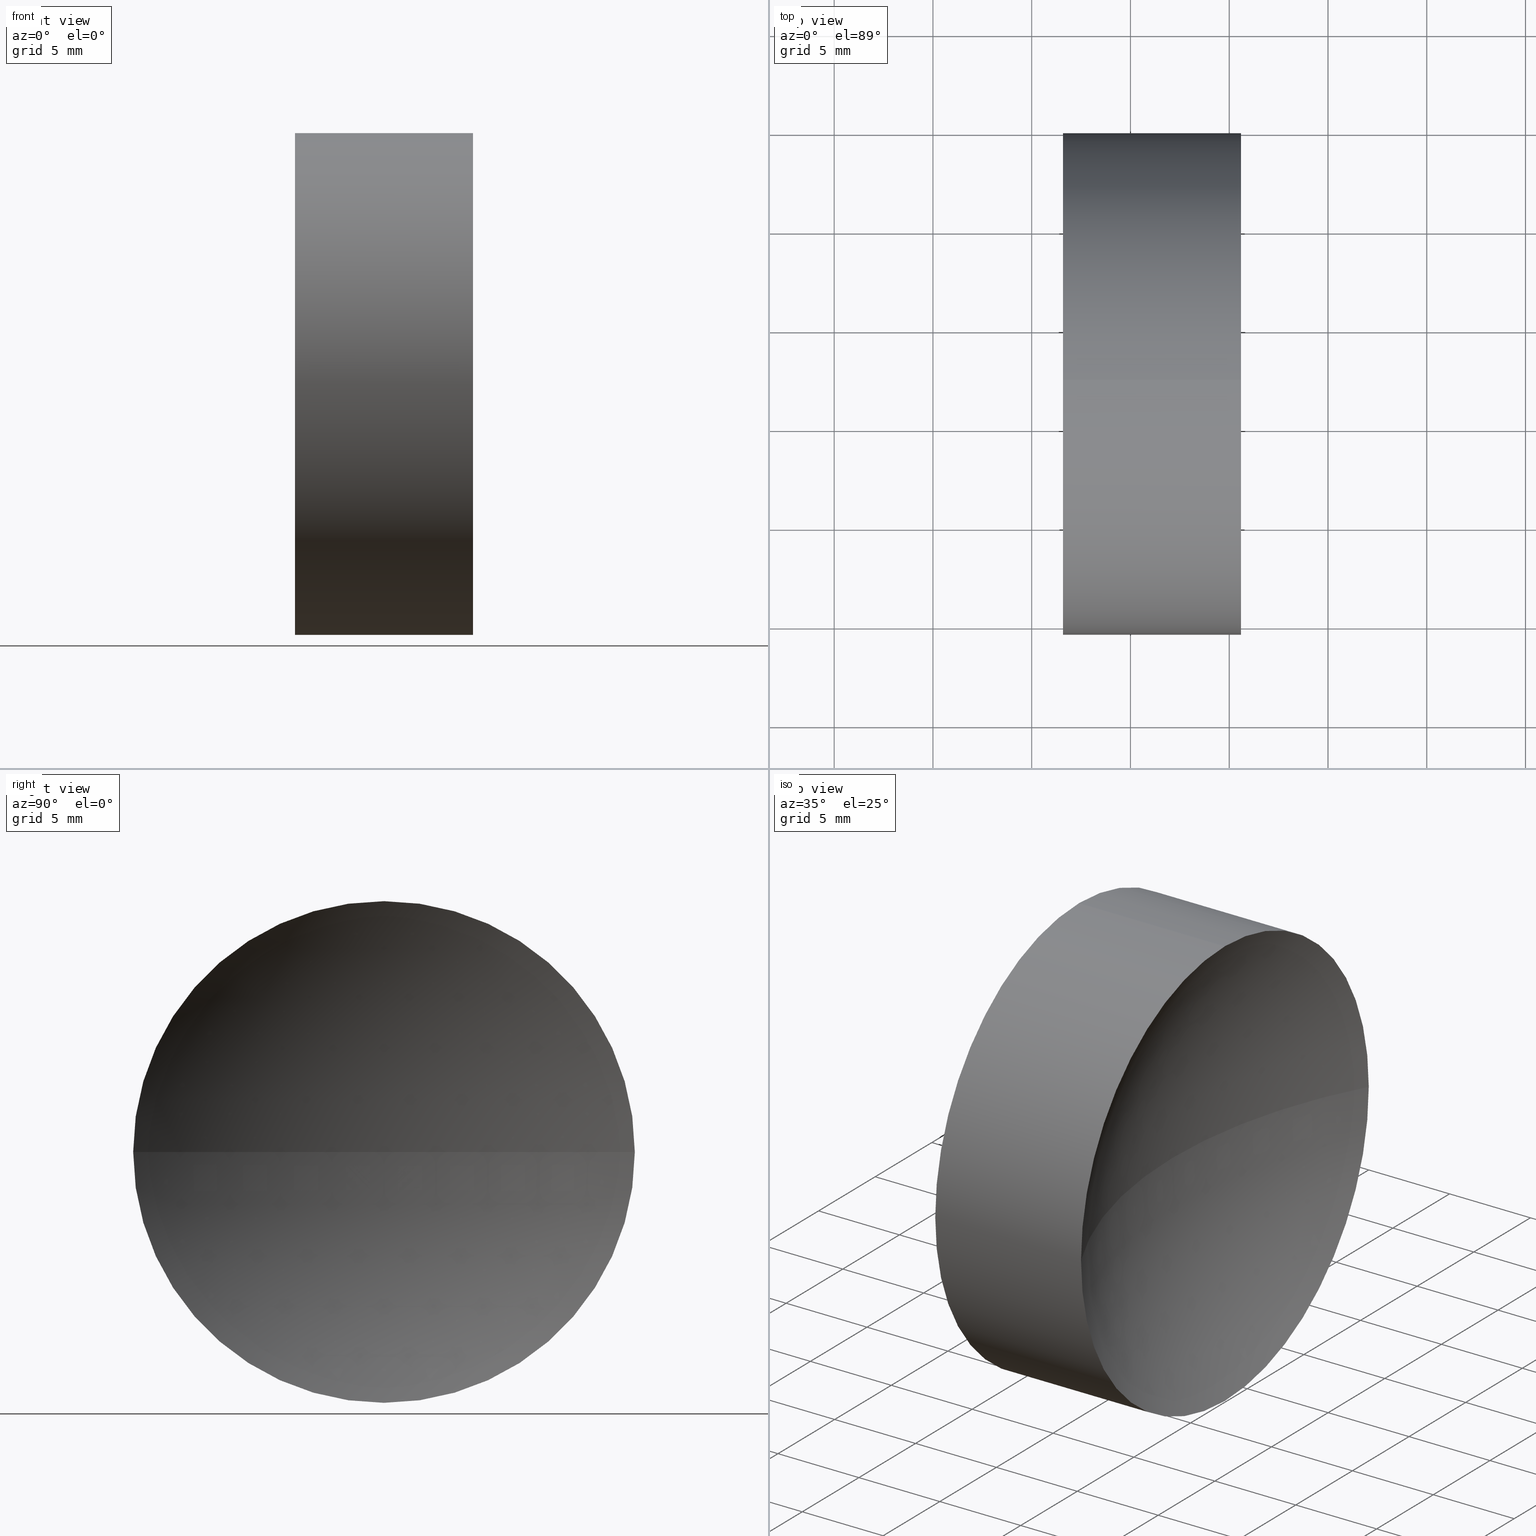
[diagram: canonical four-view strip — front | top / right | iso, engineering-drawing reading convention]
A machine part, canonical four-view strip (front | top / right | iso — engineering-drawing reading convention). The complete STEP part file that produces these views, byte-faithful:
ISO-10303-21;
HEADER;
FILE_DESCRIPTION (( 'STEP AP214' ),
    '1' );
FILE_NAME ('130072.STEP',
    '2019-07-03T01:48:53',
    ( '' ),
    ( '' ),
    'SwSTEP 2.0',
    'SolidWorks 2016',
    '' );
FILE_SCHEMA (( 'AUTOMOTIVE_DESIGN' ));
ENDSEC;

DATA;
#1 = MANIFOLD_SOLID_BREP ( '��ת1', #190 ) ;
#2 = ORIENTED_EDGE ( 'NONE', *, *, #4, .T. ) ;
#3 = FACE_OUTER_BOUND ( 'NONE', #119, .T. ) ;
#4 = EDGE_CURVE ( 'NONE', #159, #125, #23, .T. ) ;
#5 = FACE_OUTER_BOUND ( 'NONE', #44, .T. ) ;
#6 = CARTESIAN_POINT ( 'NONE',  ( 100.5958981745881700, 39.47808229838992100, 0.0000000000000000000 ) ) ;
#7 = VERTEX_POINT ( 'NONE', #180 ) ;
#8 = DIRECTION ( 'NONE',  ( 0.0000000000000000000, 1.000000000000000000, 0.0000000000000000000 ) ) ;
#9 = CIRCLE ( 'NONE', #130, 12.69999999999999600 ) ;
#10 = DIRECTION ( 'NONE',  ( 0.0000000000000000000, 0.0000000000000000000, 1.000000000000000000 ) ) ;
#11 = FACE_OUTER_BOUND ( 'NONE', #38, .T. ) ;
#12 =( LENGTH_UNIT ( ) NAMED_UNIT ( * ) SI_UNIT ( .MILLI., .METRE. ) );
#13 = AXIS2_PLACEMENT_3D ( 'NONE', #57, #61, #8 ) ;
#14 = CIRCLE ( 'NONE', #185, 12.69999999999999600 ) ;
#15 = CARTESIAN_POINT ( 'NONE',  ( 91.58498976213175500, 52.17808229838991700, 0.0000000000000000000 ) ) ;
#16 = EDGE_CURVE ( 'NONE', #19, #40, #56, .T. ) ;
#17 =( GEOMETRIC_REPRESENTATION_CONTEXT ( 3 ) GLOBAL_UNCERTAINTY_ASSIGNED_CONTEXT ( ( #88 ) ) GLOBAL_UNIT_ASSIGNED_CONTEXT ( ( #34, #91, #219 ) ) REPRESENTATION_CONTEXT ( 'NONE', 'WORKASPACE' ) );
#18 = MECHANICAL_DESIGN_GEOMETRIC_PRESENTATION_REPRESENTATION (  '', ( #147 ), #50 ) ;
#19 = VERTEX_POINT ( 'NONE', #166 ) ;
#20 = DIRECTION ( 'NONE',  ( 0.0000000000000000000, -1.224646799147353200E-016, 1.000000000000000000 ) ) ;
#21 = SURFACE_STYLE_FILL_AREA ( #102 ) ;
#22 = ORIENTED_EDGE ( 'NONE', *, *, #128, .T. ) ;
#23 = CIRCLE ( 'NONE', #37, 26.40000000000000600 ) ;
#24 = DIRECTION ( 'NONE',  ( 0.0000000000000000000, 1.000000000000000000, 0.0000000000000000000 ) ) ;
#25 = CARTESIAN_POINT ( 'NONE',  ( 0.0000000000000000000, 0.0000000000000000000, 0.0000000000000000000 ) ) ;
#26 = DIRECTION ( 'NONE',  ( 1.000000000000000000, 0.0000000000000000000, 0.0000000000000000000 ) ) ;
#27 = CARTESIAN_POINT ( 'NONE',  ( 100.5958981745881700, 52.17808229838991700, 0.0000000000000000000 ) ) ;
#28 = DIRECTION ( 'NONE',  ( -1.000000000000000000, -0.0000000000000000000, -0.0000000000000000000 ) ) ;
#29 = CIRCLE ( 'NONE', #96, 12.69999999999999600 ) ;
#30 = DIRECTION ( 'NONE',  ( -1.000000000000000000, 0.0000000000000000000, 0.0000000000000000000 ) ) ;
#31 = AXIS2_PLACEMENT_3D ( 'NONE', #227, #116, #24 ) ;
#32 = CIRCLE ( 'NONE', #212, 26.40000000000000600 ) ;
#33 = CARTESIAN_POINT ( 'NONE',  ( 123.7404439683599800, 52.17808229838991700, 0.0000000000000000000 ) ) ;
#34 =( LENGTH_UNIT ( ) NAMED_UNIT ( * ) SI_UNIT ( .MILLI., .METRE. ) );
#35 = CARTESIAN_POINT ( 'NONE',  ( 123.7404439683599800, 52.17808229838991700, 0.0000000000000000000 ) ) ;
#36 = DIRECTION ( 'NONE',  ( 0.0000000000000000000, -1.000000000000000000, 0.0000000000000000000 ) ) ;
#37 = AXIS2_PLACEMENT_3D ( 'NONE', #33, #86, #30 ) ;
#38 = EDGE_LOOP ( 'NONE', ( #113, #176, #199, #132 ) ) ;
#39 = CARTESIAN_POINT ( 'NONE',  ( 68.44044396835995800, 52.17808229838991000, 0.0000000000000000000 ) ) ;
#40 = VERTEX_POINT ( 'NONE', #68 ) ;
#41 = CARTESIAN_POINT ( 'NONE',  ( 91.58498976213175500, 52.17808229838991700, 0.0000000000000000000 ) ) ;
#42 = AXIS2_PLACEMENT_3D ( 'NONE', #107, #73, #51 ) ;
#43 = DIRECTION ( 'NONE',  ( 0.0000000000000000000, 0.0000000000000000000, 1.000000000000000000 ) ) ;
#44 = EDGE_LOOP ( 'NONE', ( #75, #163, #22, #103 ) ) ;
#45 = DIRECTION ( 'NONE',  ( 0.0000000000000000000, 0.0000000000000000000, 1.000000000000000000 ) ) ;
#46 =( GEOMETRIC_REPRESENTATION_CONTEXT ( 3 ) GLOBAL_UNCERTAINTY_ASSIGNED_CONTEXT ( ( #175 ) ) GLOBAL_UNIT_ASSIGNED_CONTEXT ( ( #122, #144, #123 ) ) REPRESENTATION_CONTEXT ( 'NONE', 'WORKASPACE' ) );
#47 = SPHERICAL_SURFACE ( 'NONE', #13, 26.39999999999999500 ) ;
#48 = EDGE_CURVE ( 'NONE', #7, #125, #32, .T. ) ;
#49 = FACE_OUTER_BOUND ( 'NONE', #90, .T. ) ;
#50 =( GEOMETRIC_REPRESENTATION_CONTEXT ( 3 ) GLOBAL_UNCERTAINTY_ASSIGNED_CONTEXT ( ( #66 ) ) GLOBAL_UNIT_ASSIGNED_CONTEXT ( ( #12, #79, #137 ) ) REPRESENTATION_CONTEXT ( 'NONE', 'WORKASPACE' ) );
#51 = DIRECTION ( 'NONE',  ( 0.0000000000000000000, 0.0000000000000000000, 1.000000000000000000 ) ) ;
#52 = SURFACE_STYLE_FILL_AREA ( #169 ) ;
#53 = VECTOR ( 'NONE', #28, 1000.000000000000000 ) ;
#54 = PRODUCT_DEFINITION_SHAPE ( 'NONE', 'NONE',  #63 ) ;
#55 = SURFACE_SIDE_STYLE ('',( #52 ) ) ;
#56 = LINE ( 'NONE', #164, #114 ) ;
#57 = CARTESIAN_POINT ( 'NONE',  ( 68.44044396835995800, 52.17808229838991000, 0.0000000000000000000 ) ) ;
#58 = VERTEX_POINT ( 'NONE', #72 ) ;
#59 = DIRECTION ( 'NONE',  ( 0.0000000000000000000, 0.0000000000000000000, 1.000000000000000000 ) ) ;
#60 = CIRCLE ( 'NONE', #101, 12.69999999999999600 ) ;
#61 = DIRECTION ( 'NONE',  ( 0.0000000000000000000, 0.0000000000000000000, -1.000000000000000000 ) ) ;
#62 = DIRECTION ( 'NONE',  ( -1.000000000000000000, -0.0000000000000000000, -0.0000000000000000000 ) ) ;
#63 = PRODUCT_DEFINITION ( 'δ֪', '', #179, #183 ) ;
#64 = PRODUCT_CONTEXT ( 'NONE', #105, 'mechanical' ) ;
#65 = EDGE_LOOP ( 'NONE', ( #150, #145, #196, #211, #83, #92 ) ) ;
#66 = UNCERTAINTY_MEASURE_WITH_UNIT (LENGTH_MEASURE( 1.000000000000000100E-005 ), #12, 'distance_accuracy_value', 'NONE');
#67 = ADVANCED_FACE ( 'NONE', ( #76 ), #215, .T. ) ;
#68 = CARTESIAN_POINT ( 'NONE',  ( 91.58498976213175500, 52.17808229838991700, -12.69999999999999600 ) ) ;
#69 = ORIENTED_EDGE ( 'NONE', *, *, #70, .T. ) ;
#70 = EDGE_CURVE ( 'NONE', #40, #160, #60, .T. ) ;
#71 = SPHERICAL_SURFACE ( 'NONE', #168, 26.40000000000000600 ) ;
#72 = CARTESIAN_POINT ( 'NONE',  ( 100.5958981745881700, 52.17808229838991700, 12.69999999999999600 ) ) ;
#73 = DIRECTION ( 'NONE',  ( -1.000000000000000000, -0.0000000000000000000, -0.0000000000000000000 ) ) ;
#74 = DIRECTION ( 'NONE',  ( 0.0000000000000000000, 0.0000000000000000000, 1.000000000000000000 ) ) ;
#75 = ORIENTED_EDGE ( 'NONE', *, *, #187, .F. ) ;
#76 = FACE_OUTER_BOUND ( 'NONE', #65, .T. ) ;
#77 = DIRECTION ( 'NONE',  ( 0.0000000000000000000, 1.000000000000000000, 1.224646799147353500E-016 ) ) ;
#78 = EDGE_CURVE ( 'NONE', #156, #160, #194, .T. ) ;
#79 =( NAMED_UNIT ( * ) PLANE_ANGLE_UNIT ( ) SI_UNIT ( $, .RADIAN. ) );
#80 = COLOUR_RGB ( '',1.000000000000000000, 1.000000000000000000, 1.000000000000000000 ) ;
#81 = APPLICATION_CONTEXT ( 'automotive_design' ) ;
#82 = CARTESIAN_POINT ( 'NONE',  ( 84.89972222827364600, 52.17808229838991700, 12.69999999999999600 ) ) ;
#83 = ORIENTED_EDGE ( 'NONE', *, *, #128, .F. ) ;
#84 = EDGE_CURVE ( 'NONE', #159, #58, #29, .T. ) ;
#85 = ADVANCED_FACE ( 'NONE', ( #5 ), #47, .F. ) ;
#86 = DIRECTION ( 'NONE',  ( 0.0000000000000000000, 0.0000000000000000000, -1.000000000000000000 ) ) ;
#87 = AXIS2_PLACEMENT_3D ( 'NONE', #188, #43, #104 ) ;
#88 = UNCERTAINTY_MEASURE_WITH_UNIT (LENGTH_MEASURE( 1.000000000000000100E-005 ), #34, 'distance_accuracy_value', 'NONE');
#89 = ORIENTED_EDGE ( 'NONE', *, *, #78, .F. ) ;
#90 = EDGE_LOOP ( 'NONE', ( #89, #217, #172, #69 ) ) ;
#91 =( NAMED_UNIT ( * ) PLANE_ANGLE_UNIT ( ) SI_UNIT ( $, .RADIAN. ) );
#92 = ORIENTED_EDGE ( 'NONE', *, *, #70, .F. ) ;
#93 = DIRECTION ( 'NONE',  ( 0.0000000000000000000, 0.0000000000000000000, 1.000000000000000000 ) ) ;
#94 = VERTEX_POINT ( 'NONE', #131 ) ;
#95 = CARTESIAN_POINT ( 'NONE',  ( 100.5958981745881700, 52.17808229838991700, 0.0000000000000000000 ) ) ;
#96 = AXIS2_PLACEMENT_3D ( 'NONE', #202, #181, #100 ) ;
#97 = ORIENTED_EDGE ( 'NONE', *, *, #157, .F. ) ;
#98 = CARTESIAN_POINT ( 'NONE',  ( 94.84044396835994900, 52.17808229838991000, 0.0000000000000000000 ) ) ;
#99 = EDGE_CURVE ( 'NONE', #58, #7, #165, .T. ) ;
#100 = DIRECTION ( 'NONE',  ( 0.0000000000000000000, 0.0000000000000000000, 1.000000000000000000 ) ) ;
#101 = AXIS2_PLACEMENT_3D ( 'NONE', #200, #171, #10 ) ;
#102 = FILL_AREA_STYLE ('',( #189 ) ) ;
#103 = ORIENTED_EDGE ( 'NONE', *, *, #157, .T. ) ;
#104 = DIRECTION ( 'NONE',  ( 1.000000000000000000, 0.0000000000000000000, 0.0000000000000000000 ) ) ;
#105 = APPLICATION_CONTEXT ( 'automotive_design' ) ;
#106 = LINE ( 'NONE', #82, #53 ) ;
#107 = CARTESIAN_POINT ( 'NONE',  ( 84.89972222827364600, 52.17808229838991700, 0.0000000000000000000 ) ) ;
#108 = ORIENTED_EDGE ( 'NONE', *, *, #216, .F. ) ;
#109 = AXIS2_PLACEMENT_3D ( 'NONE', #95, #184, #222 ) ;
#110 = AXIS2_PLACEMENT_3D ( 'NONE', #134, #191, #118 ) ;
#111 = PRODUCT ( '130072', '130072', '', ( #64 ) ) ;
#112 = PRESENTATION_STYLE_ASSIGNMENT (( #135 ) ) ;
#113 = ORIENTED_EDGE ( 'NONE', *, *, #142, .F. ) ;
#114 = VECTOR ( 'NONE', #127, 1000.000000000000000 ) ;
#115 = DIRECTION ( 'NONE',  ( 0.0000000000000000000, 0.0000000000000000000, 1.000000000000000000 ) ) ;
#116 = DIRECTION ( 'NONE',  ( 0.0000000000000000000, 0.0000000000000000000, -1.000000000000000000 ) ) ;
#117 = AXIS2_PLACEMENT_3D ( 'NONE', #129, #204, #153 ) ;
#118 = DIRECTION ( 'NONE',  ( 0.0000000000000000000, 0.0000000000000000000, 1.000000000000000000 ) ) ;
#119 = EDGE_LOOP ( 'NONE', ( #178, #224, #192, #2 ) ) ;
#120 = STYLED_ITEM ( 'NONE', ( #177 ), #1 ) ;
#121 = CIRCLE ( 'NONE', #117, 12.69999999999999600 ) ;
#122 =( LENGTH_UNIT ( ) NAMED_UNIT ( * ) SI_UNIT ( .MILLI., .METRE. ) );
#123 =( NAMED_UNIT ( * ) SI_UNIT ( $, .STERADIAN. ) SOLID_ANGLE_UNIT ( ) );
#124 = CARTESIAN_POINT ( 'NONE',  ( 97.34044396835997800, 52.17808229838991700, 0.0000000000000000000 ) ) ;
#125 = VERTEX_POINT ( 'NONE', #124 ) ;
#126 = SURFACE_STYLE_USAGE ( .BOTH. , #55 ) ;
#127 = DIRECTION ( 'NONE',  ( -1.000000000000000000, -0.0000000000000000000, -0.0000000000000000000 ) ) ;
#128 = EDGE_CURVE ( 'NONE', #160, #229, #14, .T. ) ;
#129 = CARTESIAN_POINT ( 'NONE',  ( 91.58498976213175500, 52.17808229838991700, 0.0000000000000000000 ) ) ;
#130 = AXIS2_PLACEMENT_3D ( 'NONE', #15, #62, #209 ) ;
#131 = CARTESIAN_POINT ( 'NONE',  ( 91.58498976213175500, 64.87808229838989900, 0.0000000000000000000 ) ) ;
#132 = ORIENTED_EDGE ( 'NONE', *, *, #193, .F. ) ;
#133 = CARTESIAN_POINT ( 'NONE',  ( 123.7404439683599800, 52.17808229838991700, 0.0000000000000000000 ) ) ;
#134 = CARTESIAN_POINT ( 'NONE',  ( 84.89972222827364600, 52.17808229838991700, 0.0000000000000000000 ) ) ;
#135 = SURFACE_STYLE_USAGE ( .BOTH. , #136 ) ;
#136 = SURFACE_SIDE_STYLE ('',( #21 ) ) ;
#137 =( NAMED_UNIT ( * ) SI_UNIT ( $, .STERADIAN. ) SOLID_ANGLE_UNIT ( ) );
#138 = EDGE_LOOP ( 'NONE', ( #143, #214, #108, #97, #167, #146 ) ) ;
#139 = CIRCLE ( 'NONE', #140, 12.69999999999999600 ) ;
#140 = AXIS2_PLACEMENT_3D ( 'NONE', #27, #210, #174 ) ;
#141 = ADVANCED_FACE ( 'NONE', ( #11 ), #218, .F. ) ;
#142 = EDGE_CURVE ( 'NONE', #7, #19, #149, .T. ) ;
#143 = ORIENTED_EDGE ( 'NONE', *, *, #142, .T. ) ;
#144 =( NAMED_UNIT ( * ) PLANE_ANGLE_UNIT ( ) SI_UNIT ( $, .RADIAN. ) );
#145 = ORIENTED_EDGE ( 'NONE', *, *, #193, .T. ) ;
#146 = ORIENTED_EDGE ( 'NONE', *, *, #99, .T. ) ;
#147 = STYLED_ITEM ( 'NONE', ( #112 ), #198 ) ;
#148 = FILL_AREA_STYLE_COLOUR ( '', #173 ) ;
#149 = CIRCLE ( 'NONE', #109, 12.69999999999999600 ) ;
#150 = ORIENTED_EDGE ( 'NONE', *, *, #16, .F. ) ;
#151 = DIRECTION ( 'NONE',  ( 0.0000000000000000000, 1.224646799147353200E-016, -1.000000000000000000 ) ) ;
#152 = SPHERICAL_SURFACE ( 'NONE', #31, 26.39999999999999500 ) ;
#153 = DIRECTION ( 'NONE',  ( 0.0000000000000000000, 0.0000000000000000000, 1.000000000000000000 ) ) ;
#154 = CARTESIAN_POINT ( 'NONE',  ( 100.5958981745881700, 52.17808229838991700, 0.0000000000000000000 ) ) ;
#155 = PRODUCT_RELATED_PRODUCT_CATEGORY ( 'part', '', ( #111 ) ) ;
#156 = VERTEX_POINT ( 'NONE', #98 ) ;
#157 = EDGE_CURVE ( 'NONE', #229, #94, #121, .T. ) ;
#158 = APPLICATION_PROTOCOL_DEFINITION ( 'draft international standard', 'automotive_design', 1998, #81 ) ;
#159 = VERTEX_POINT ( 'NONE', #6 ) ;
#160 = VERTEX_POINT ( 'NONE', #207 ) ;
#161 = AXIS2_PLACEMENT_3D ( 'NONE', #25, #45, #26 ) ;
#162 = ADVANCED_FACE ( 'NONE', ( #3 ), #71, .F. ) ;
#163 = ORIENTED_EDGE ( 'NONE', *, *, #78, .T. ) ;
#164 = CARTESIAN_POINT ( 'NONE',  ( 84.89972222827364600, 52.17808229838991700, -12.69999999999999600 ) ) ;
#165 = CIRCLE ( 'NONE', #206, 12.69999999999999600 ) ;
#166 = CARTESIAN_POINT ( 'NONE',  ( 100.5958981745881700, 52.17808229838991700, -12.69999999999999600 ) ) ;
#167 = ORIENTED_EDGE ( 'NONE', *, *, #208, .F. ) ;
#168 = AXIS2_PLACEMENT_3D ( 'NONE', #223, #115, #213 ) ;
#169 = FILL_AREA_STYLE ('',( #148 ) ) ;
#170 = DIRECTION ( 'NONE',  ( 0.0000000000000000000, -1.000000000000000000, -1.224646799147353200E-016 ) ) ;
#171 = DIRECTION ( 'NONE',  ( -1.000000000000000000, -0.0000000000000000000, -0.0000000000000000000 ) ) ;
#172 = ORIENTED_EDGE ( 'NONE', *, *, #216, .T. ) ;
#173 = COLOUR_RGB ( '',1.000000000000000000, 1.000000000000000000, 1.000000000000000000 ) ;
#174 = DIRECTION ( 'NONE',  ( 0.0000000000000000000, 0.0000000000000000000, 1.000000000000000000 ) ) ;
#175 = UNCERTAINTY_MEASURE_WITH_UNIT (LENGTH_MEASURE( 1.000000000000000100E-005 ), #122, 'distance_accuracy_value', 'NONE');
#176 = ORIENTED_EDGE ( 'NONE', *, *, #48, .T. ) ;
#177 = PRESENTATION_STYLE_ASSIGNMENT (( #126 ) ) ;
#178 = ORIENTED_EDGE ( 'NONE', *, *, #48, .F. ) ;
#179 = PRODUCT_DEFINITION_FORMATION_WITH_SPECIFIED_SOURCE ( '�κ�', '', #111, .NOT_KNOWN. ) ;
#180 = CARTESIAN_POINT ( 'NONE',  ( 100.5958981745881700, 64.87808229838991300, 1.555301434917137800E-015 ) ) ;
#181 = DIRECTION ( 'NONE',  ( -1.000000000000000000, -0.0000000000000000000, -0.0000000000000000000 ) ) ;
#182 = AXIS2_PLACEMENT_3D ( 'NONE', #133, #93, #36 ) ;
#183 = PRODUCT_DEFINITION_CONTEXT ( 'detailed design', #81, 'design' ) ;
#184 = DIRECTION ( 'NONE',  ( -1.000000000000000000, -0.0000000000000000000, -0.0000000000000000000 ) ) ;
#185 = AXIS2_PLACEMENT_3D ( 'NONE', #41, #205, #74 ) ;
#186 = CIRCLE ( 'NONE', #87, 26.39999999999999100 ) ;
#187 = EDGE_CURVE ( 'NONE', #156, #94, #186, .T. ) ;
#188 = CARTESIAN_POINT ( 'NONE',  ( 68.44044396835995800, 52.17808229838991000, 0.0000000000000000000 ) ) ;
#189 = FILL_AREA_STYLE_COLOUR ( '', #80 ) ;
#190 = CLOSED_SHELL ( 'NONE', ( #231, #141, #85, #195, #162, #67 ) ) ;
#191 = DIRECTION ( 'NONE',  ( -1.000000000000000000, -0.0000000000000000000, -0.0000000000000000000 ) ) ;
#192 = ORIENTED_EDGE ( 'NONE', *, *, #84, .F. ) ;
#193 = EDGE_CURVE ( 'NONE', #19, #159, #139, .T. ) ;
#194 = CIRCLE ( 'NONE', #221, 26.39999999999999100 ) ;
#195 = ADVANCED_FACE ( 'NONE', ( #49 ), #152, .F. ) ;
#196 = ORIENTED_EDGE ( 'NONE', *, *, #84, .T. ) ;
#197 = SHAPE_DEFINITION_REPRESENTATION ( #54, #198 ) ;
#198 = ADVANCED_BREP_SHAPE_REPRESENTATION ( '130072', ( #1, #161 ), #46 ) ;
#199 = ORIENTED_EDGE ( 'NONE', *, *, #4, .F. ) ;
#200 = CARTESIAN_POINT ( 'NONE',  ( 91.58498976213175500, 52.17808229838991700, 0.0000000000000000000 ) ) ;
#201 = PRESENTATION_LAYER_ASSIGNMENT (  '', '', ( #120 ) ) ;
#202 = CARTESIAN_POINT ( 'NONE',  ( 100.5958981745881700, 52.17808229838991700, 0.0000000000000000000 ) ) ;
#203 = FACE_OUTER_BOUND ( 'NONE', #138, .T. ) ;
#204 = DIRECTION ( 'NONE',  ( -1.000000000000000000, -0.0000000000000000000, -0.0000000000000000000 ) ) ;
#205 = DIRECTION ( 'NONE',  ( -1.000000000000000000, -0.0000000000000000000, -0.0000000000000000000 ) ) ;
#206 = AXIS2_PLACEMENT_3D ( 'NONE', #154, #225, #59 ) ;
#207 = CARTESIAN_POINT ( 'NONE',  ( 91.58498976213175500, 39.47808229838992100, -1.555301434917137800E-015 ) ) ;
#208 = EDGE_CURVE ( 'NONE', #58, #229, #106, .T. ) ;
#209 = DIRECTION ( 'NONE',  ( 0.0000000000000000000, 0.0000000000000000000, 1.000000000000000000 ) ) ;
#210 = DIRECTION ( 'NONE',  ( -1.000000000000000000, -0.0000000000000000000, -0.0000000000000000000 ) ) ;
#211 = ORIENTED_EDGE ( 'NONE', *, *, #208, .T. ) ;
#212 = AXIS2_PLACEMENT_3D ( 'NONE', #35, #20, #170 ) ;
#213 = DIRECTION ( 'NONE',  ( 0.0000000000000000000, -1.000000000000000000, 0.0000000000000000000 ) ) ;
#214 = ORIENTED_EDGE ( 'NONE', *, *, #16, .T. ) ;
#215 = CYLINDRICAL_SURFACE ( 'NONE', #42, 12.69999999999999600 ) ;
#216 = EDGE_CURVE ( 'NONE', #94, #40, #9, .T. ) ;
#217 = ORIENTED_EDGE ( 'NONE', *, *, #187, .T. ) ;
#218 = SPHERICAL_SURFACE ( 'NONE', #182, 26.40000000000000600 ) ;
#219 =( NAMED_UNIT ( * ) SI_UNIT ( $, .STERADIAN. ) SOLID_ANGLE_UNIT ( ) );
#220 = CYLINDRICAL_SURFACE ( 'NONE', #110, 12.69999999999999600 ) ;
#221 = AXIS2_PLACEMENT_3D ( 'NONE', #39, #151, #77 ) ;
#222 = DIRECTION ( 'NONE',  ( 0.0000000000000000000, 0.0000000000000000000, 1.000000000000000000 ) ) ;
#223 = CARTESIAN_POINT ( 'NONE',  ( 123.7404439683599800, 52.17808229838991700, 0.0000000000000000000 ) ) ;
#224 = ORIENTED_EDGE ( 'NONE', *, *, #99, .F. ) ;
#225 = DIRECTION ( 'NONE',  ( -1.000000000000000000, -0.0000000000000000000, -0.0000000000000000000 ) ) ;
#226 = MECHANICAL_DESIGN_GEOMETRIC_PRESENTATION_REPRESENTATION (  '', ( #120 ), #17 ) ;
#227 = CARTESIAN_POINT ( 'NONE',  ( 68.44044396835995800, 52.17808229838991000, 0.0000000000000000000 ) ) ;
#228 = APPLICATION_PROTOCOL_DEFINITION ( 'draft international standard', 'automotive_design', 1998, #105 ) ;
#229 = VERTEX_POINT ( 'NONE', #230 ) ;
#230 = CARTESIAN_POINT ( 'NONE',  ( 91.58498976213175500, 52.17808229838991700, 12.69999999999999600 ) ) ;
#231 = ADVANCED_FACE ( 'NONE', ( #203 ), #220, .T. ) ;
#232 = PRESENTATION_LAYER_ASSIGNMENT (  '', '', ( #147 ) ) ;
ENDSEC;
END-ISO-10303-21;
